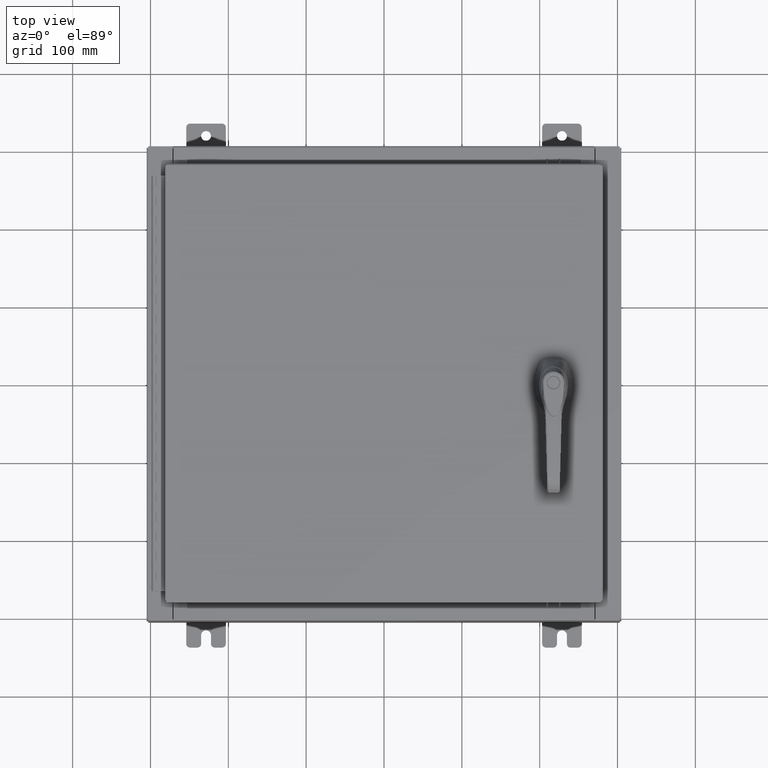
[diagram: clean part render]
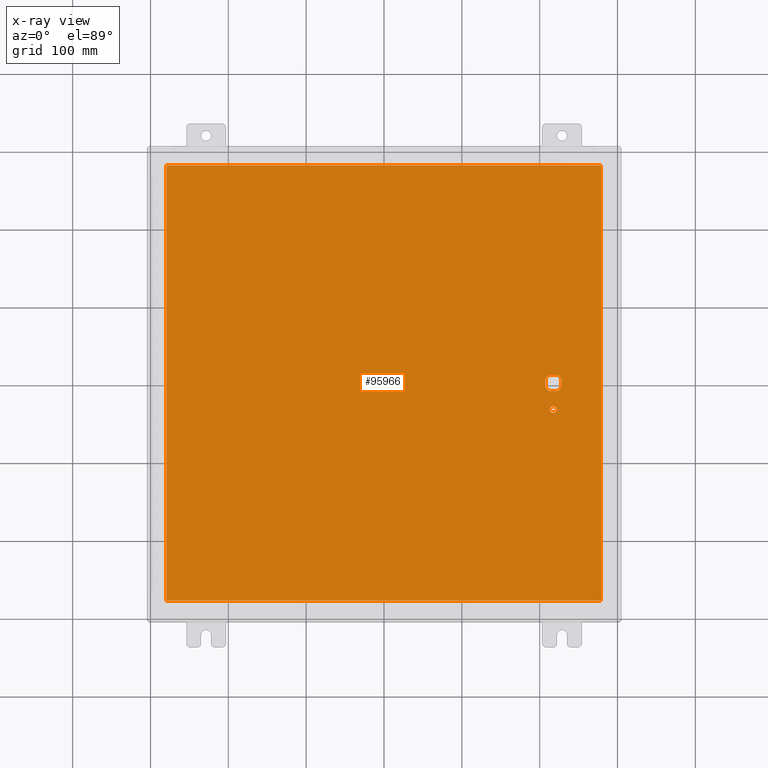
[diagram: x-ray — body ghosted, one internal face saturated and labeled with its STEP entity id]
A machine part, top view, then the same camera in x-ray: the body is ghosted and one INTERNAL B-rep face — a face not visible from any outside direction — is saturated and labeled: STEP entity #95966.
In plain terms, the highlighted planar face has unit normal (0, 0, -1).
Its self-contained STEP definition (entity closure, byte-faithful):
#615 = CARTESIAN_POINT ( 'NONE',  ( 8.749499999999997600, -1.338000000000000100, -0.07470000000000003000 ) ) ;
#978 = CARTESIAN_POINT ( 'NONE',  ( 8.577999999999995900, 0.0000000000000000000, -0.07470000000000003000 ) ) ;
#1363 = CIRCLE ( 'NONE', #105168, 0.1715000000000011500 ) ;
#1377 = ORIENTED_EDGE ( 'NONE', *, *, #45355, .T. ) ;
#1512 = CARTESIAN_POINT ( 'NONE',  ( 8.377772629243686700, 0.4029999999999252000, -0.07470000000000003000 ) ) ;
#1761 = DIRECTION ( 'NONE',  ( -1.000000000000000000, -0.0000000000000000000, -0.0000000000000000000 ) ) ;
#2542 = VERTEX_POINT ( 'NONE', #91386 ) ;
#3195 = FACE_BOUND ( 'NONE', #66027, .T. ) ;
#3622 = CARTESIAN_POINT ( 'NONE',  ( -10.99030000000000100, 11.00629999999999600, -0.07470000000000000300 ) ) ;
#6915 = LINE ( 'NONE', #93659, #73370 ) ;
#8032 = ORIENTED_EDGE ( 'NONE', *, *, #32721, .F. ) ;
#9671 = DIRECTION ( 'NONE',  ( -1.000000000000000000, 8.881784197001256300E-016, 0.0000000000000000000 ) ) ;
#10079 = EDGE_CURVE ( 'NONE', #59838, #13155, #42542, .T. ) ;
#10497 = CARTESIAN_POINT ( 'NONE',  ( 10.99029999999999800, 11.00629999999999600, -0.07470000000000019700 ) ) ;
#10664 = CARTESIAN_POINT ( 'NONE',  ( 8.778227370756305000, -0.4029999999999252000, -0.07470000000000003000 ) ) ;
#12103 = EDGE_CURVE ( 'NONE', #74048, #110241, #43357, .T. ) ;
#12129 = CARTESIAN_POINT ( 'NONE',  ( 8.980999999999921700, 2.450686610769031800E-014, -0.07470000000000003000 ) ) ;
#12380 = CARTESIAN_POINT ( 'NONE',  ( 8.406499999999994100, -1.338000000000000100, -0.07470000000000003000 ) ) ;
#13155 = VERTEX_POINT ( 'NONE', #1512 ) ;
#14087 = VECTOR ( 'NONE', #108325, 39.37007874015748100 ) ;
#17862 = AXIS2_PLACEMENT_3D ( 'NONE', #978, #61642, #9671 ) ;
#19116 = DIRECTION ( 'NONE',  ( -0.0000000000000000000, -0.0000000000000000000, 1.000000000000000000 ) ) ;
#20668 = ORIENTED_EDGE ( 'NONE', *, *, #62602, .T. ) ;
#20729 = PLANE ( 'NONE',  #92253 ) ;
#21832 = CIRCLE ( 'NONE', #17862, 0.4499999999999156900 ) ;
#25270 = DIRECTION ( 'NONE',  ( -1.000000000000000000, 0.0000000000000000000, 0.0000000000000000000 ) ) ;
#26256 = FACE_OUTER_BOUND ( 'NONE', #91969, .T. ) ;
#29488 = CARTESIAN_POINT ( 'NONE',  ( 0.0000000000000000000, 0.0000000000000000000, -0.07470000000000000300 ) ) ;
#30444 = VERTEX_POINT ( 'NONE', #49497 ) ;
#30628 = DIRECTION ( 'NONE',  ( -0.0000000000000000000, -0.0000000000000000000, 1.000000000000000000 ) ) ;
#32721 = EDGE_CURVE ( 'NONE', #110241, #30444, #81086, .T. ) ;
#32974 = VECTOR ( 'NONE', #70242, 39.37007874015748100 ) ;
#33340 = CARTESIAN_POINT ( 'NONE',  ( 8.577999999999995900, 0.0000000000000000000, -0.07470000000000003000 ) ) ;
#34979 = VECTOR ( 'NONE', #47089, 39.37007874015748100 ) ;
#35397 = CARTESIAN_POINT ( 'NONE',  ( 10.99029999999999600, -11.00630000000000100, -0.07470000000000019700 ) ) ;
#35720 = LINE ( 'NONE', #35397, #32974 ) ;
#37237 = CARTESIAN_POINT ( 'NONE',  ( 8.377772629243686700, -0.4029999999999250300, -0.07470000000000003000 ) ) ;
#37772 = EDGE_CURVE ( 'NONE', #48467, #2542, #40865, .T. ) ;
#38212 = DIRECTION ( 'NONE',  ( -1.000000000000000000, 0.0000000000000000000, -0.0000000000000000000 ) ) ;
#38264 = DIRECTION ( 'NONE',  ( -0.0000000000000000000, -0.0000000000000000000, 1.000000000000000000 ) ) ;
#39507 = VECTOR ( 'NONE', #45326, 39.37007874015748100 ) ;
#40592 = CARTESIAN_POINT ( 'NONE',  ( 8.577999999999995900, 0.0000000000000000000, -0.07470000000000003000 ) ) ;
#40865 = LINE ( 'NONE', #12129, #107200 ) ;
#41404 = ORIENTED_EDGE ( 'NONE', *, *, #81541, .F. ) ;
#42073 = DIRECTION ( 'NONE',  ( -1.000000000000000000, 0.0000000000000000000, 0.0000000000000000000 ) ) ;
#42542 = LINE ( 'NONE', #77220, #62903 ) ;
#43017 = VERTEX_POINT ( 'NONE', #50508 ) ;
#43357 = LINE ( 'NONE', #10497, #83999 ) ;
#45326 = DIRECTION ( 'NONE',  ( 1.000000000000000000, -0.0000000000000000000, -0.0000000000000000000 ) ) ;
#45355 = EDGE_CURVE ( 'NONE', #48467, #59838, #57604, .T. ) ;
#47089 = DIRECTION ( 'NONE',  ( 0.0000000000000000000, -1.000000000000000000, 0.0000000000000000000 ) ) ;
#47507 = ORIENTED_EDGE ( 'NONE', *, *, #69907, .T. ) ;
#48467 = VERTEX_POINT ( 'NONE', #102348 ) ;
#48947 = AXIS2_PLACEMENT_3D ( 'NONE', #82573, #30628, #91252 ) ;
#49247 = DIRECTION ( 'NONE',  ( -1.000000000000000000, 1.776356839400251300E-015, 0.0000000000000000000 ) ) ;
#49497 = CARTESIAN_POINT ( 'NONE',  ( -10.99030000000000000, -11.00630000000000100, -0.07470000000000000300 ) ) ;
#50508 = CARTESIAN_POINT ( 'NONE',  ( 8.175000000000070000, 0.2002273707563080300, -0.07470000000000003000 ) ) ;
#51596 = EDGE_CURVE ( 'NONE', #57776, #74048, #35720, .T. ) ;
#53730 = VERTEX_POINT ( 'NONE', #37237 ) ;
#54787 = VERTEX_POINT ( 'NONE', #615 ) ;
#55778 = CARTESIAN_POINT ( 'NONE',  ( -10.99030000000000500, 11.00629999999999600, -0.07470000000000133500 ) ) ;
#57516 = LINE ( 'NONE', #65217, #14087 ) ;
#57587 = VERTEX_POINT ( 'NONE', #73095 ) ;
#57604 = CIRCLE ( 'NONE', #68752, 0.4499999999999156900 ) ;
#57776 = VERTEX_POINT ( 'NONE', #92366 ) ;
#58298 = CARTESIAN_POINT ( 'NONE',  ( 8.778227370756305000, 0.4029999999999250300, -0.07470000000000003000 ) ) ;
#59838 = VERTEX_POINT ( 'NONE', #58298 ) ;
#61642 = DIRECTION ( 'NONE',  ( -0.0000000000000000000, -0.0000000000000000000, 1.000000000000000000 ) ) ;
#62392 = CARTESIAN_POINT ( 'NONE',  ( -10.99030000000000000, -11.00630000000000100, -0.07470000000000019700 ) ) ;
#62574 = LINE ( 'NONE', #62392, #39507 ) ;
#62583 = AXIS2_PLACEMENT_3D ( 'NONE', #33340, #93927, #42073 ) ;
#62602 = EDGE_CURVE ( 'NONE', #54787, #91850, #1363, .T. ) ;
#62903 = VECTOR ( 'NONE', #25270, 39.37007874015748100 ) ;
#63088 = ORIENTED_EDGE ( 'NONE', *, *, #51596, .F. ) ;
#65217 = CARTESIAN_POINT ( 'NONE',  ( 0.0000000000000000000, -0.4029999999999252000, -0.07470000000000003000 ) ) ;
#65885 = EDGE_LOOP ( 'NONE', ( #82201, #94904, #1377, #68368, #107481, #70393, #106531, #82781 ) ) ;
#66027 = EDGE_LOOP ( 'NONE', ( #20668, #47507 ) ) ;
#68368 = ORIENTED_EDGE ( 'NONE', *, *, #10079, .T. ) ;
#68752 = AXIS2_PLACEMENT_3D ( 'NONE', #71068, #19116, #79805 ) ;
#69907 = EDGE_CURVE ( 'NONE', #91850, #54787, #100985, .T. ) ;
#70242 = DIRECTION ( 'NONE',  ( 0.0000000000000000000, 1.000000000000000000, 0.0000000000000000000 ) ) ;
#70393 = ORIENTED_EDGE ( 'NONE', *, *, #101758, .T. ) ;
#71068 = CARTESIAN_POINT ( 'NONE',  ( 8.577999999999995900, 0.0000000000000000000, -0.07470000000000003000 ) ) ;
#72406 = FACE_BOUND ( 'NONE', #65885, .T. ) ;
#73095 = CARTESIAN_POINT ( 'NONE',  ( 8.175000000000070000, -0.2002273707563079800, -0.07470000000000003000 ) ) ;
#73291 = CIRCLE ( 'NONE', #62583, 0.4499999999999156900 ) ;
#73370 = VECTOR ( 'NONE', #111025, 39.37007874015748100 ) ;
#74048 = VERTEX_POINT ( 'NONE', #87044 ) ;
#74095 = EDGE_CURVE ( 'NONE', #57587, #53730, #21832, .T. ) ;
#77220 = CARTESIAN_POINT ( 'NONE',  ( 0.0000000000000000000, 0.4029999999999252000, -0.07470000000000003000 ) ) ;
#78189 = EDGE_CURVE ( 'NONE', #53730, #90166, #57516, .T. ) ;
#79805 = DIRECTION ( 'NONE',  ( -1.000000000000000000, 0.0000000000000000000, 0.0000000000000000000 ) ) ;
#80091 = CIRCLE ( 'NONE', #111930, 0.4499999999999156900 ) ;
#81086 = LINE ( 'NONE', #55778, #34979 ) ;
#81541 = EDGE_CURVE ( 'NONE', #30444, #57776, #62574, .T. ) ;
#82182 = EDGE_CURVE ( 'NONE', #13155, #43017, #73291, .T. ) ;
#82201 = ORIENTED_EDGE ( 'NONE', *, *, #84008, .T. ) ;
#82573 = CARTESIAN_POINT ( 'NONE',  ( 8.577999999999995900, -1.338000000000000100, -0.07470000000000003000 ) ) ;
#82781 = ORIENTED_EDGE ( 'NONE', *, *, #78189, .T. ) ;
#83999 = VECTOR ( 'NONE', #1761, 39.37007874015748100 ) ;
#84008 = EDGE_CURVE ( 'NONE', #90166, #2542, #80091, .T. ) ;
#86576 = ORIENTED_EDGE ( 'NONE', *, *, #12103, .F. ) ;
#87044 = CARTESIAN_POINT ( 'NONE',  ( 10.99029999999999600, 11.00629999999999600, -0.07470000000000000300 ) ) ;
#90109 = DIRECTION ( 'NONE',  ( 0.0000000000000000000, 0.0000000000000000000, -1.000000000000000000 ) ) ;
#90165 = CARTESIAN_POINT ( 'NONE',  ( 8.577999999999995900, -1.338000000000000100, -0.07470000000000003000 ) ) ;
#90166 = VERTEX_POINT ( 'NONE', #10664 ) ;
#91252 = DIRECTION ( 'NONE',  ( -1.000000000000000000, 0.0000000000000000000, 0.0000000000000000000 ) ) ;
#91386 = CARTESIAN_POINT ( 'NONE',  ( 8.980999999999921700, -0.2002273707563075900, -0.07470000000000003000 ) ) ;
#91850 = VERTEX_POINT ( 'NONE', #12380 ) ;
#91969 = EDGE_LOOP ( 'NONE', ( #63088, #41404, #8032, #86576 ) ) ;
#92253 = AXIS2_PLACEMENT_3D ( 'NONE', #29488, #90109, #38212 ) ;
#92366 = CARTESIAN_POINT ( 'NONE',  ( 10.99029999999999600, -11.00630000000000100, -0.07470000000000000300 ) ) ;
#93659 = CARTESIAN_POINT ( 'NONE',  ( 8.175000000000070000, 0.0000000000000000000, -0.07470000000000003000 ) ) ;
#93927 = DIRECTION ( 'NONE',  ( -0.0000000000000000000, -0.0000000000000000000, 1.000000000000000000 ) ) ;
#94904 = ORIENTED_EDGE ( 'NONE', *, *, #37772, .F. ) ;
#95966 = ADVANCED_FACE ( 'NONE', ( #3195, #26256, #72406 ), #20729, .T. ) ;
#98855 = DIRECTION ( 'NONE',  ( -1.000000000000000000, 0.0000000000000000000, 0.0000000000000000000 ) ) ;
#100985 = CIRCLE ( 'NONE', #48947, 0.1715000000000011500 ) ;
#101151 = DIRECTION ( 'NONE',  ( -0.0000000000000000000, -0.0000000000000000000, 1.000000000000000000 ) ) ;
#101758 = EDGE_CURVE ( 'NONE', #43017, #57587, #6915, .T. ) ;
#102348 = CARTESIAN_POINT ( 'NONE',  ( 8.980999999999921700, 0.2002273707563080300, -0.07470000000000003000 ) ) ;
#105168 = AXIS2_PLACEMENT_3D ( 'NONE', #90165, #38264, #98855 ) ;
#106531 = ORIENTED_EDGE ( 'NONE', *, *, #74095, .T. ) ;
#107196 = DIRECTION ( 'NONE',  ( 2.728745808672812900E-015, -1.000000000000000000, 0.0000000000000000000 ) ) ;
#107200 = VECTOR ( 'NONE', #107196, 39.37007874015748100 ) ;
#107481 = ORIENTED_EDGE ( 'NONE', *, *, #82182, .T. ) ;
#108325 = DIRECTION ( 'NONE',  ( 1.000000000000000000, 0.0000000000000000000, 0.0000000000000000000 ) ) ;
#110241 = VERTEX_POINT ( 'NONE', #3622 ) ;
#111025 = DIRECTION ( 'NONE',  ( 0.0000000000000000000, -1.000000000000000000, 0.0000000000000000000 ) ) ;
#111930 = AXIS2_PLACEMENT_3D ( 'NONE', #40592, #101151, #49247 ) ;